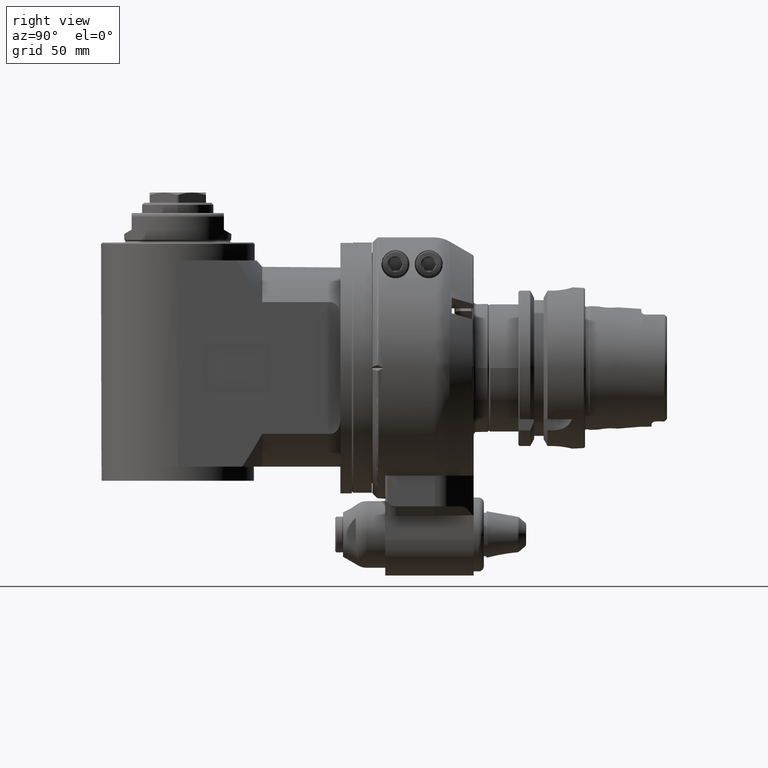
[diagram: clean part render]
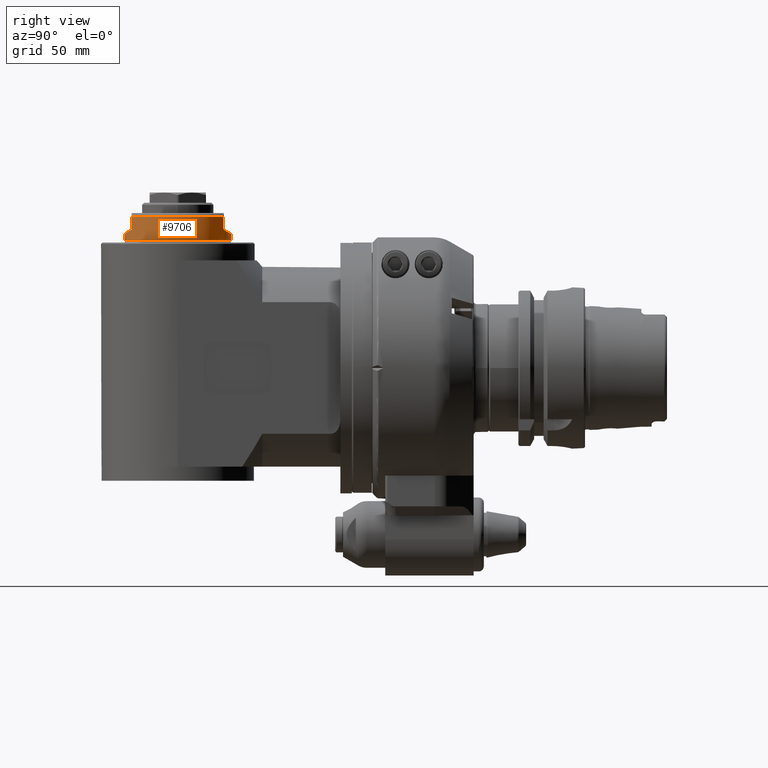
[diagram: same view with one face highlighted and labeled with its STEP entity id]
A machine part, right view. The second image highlights one B-rep face of the part: STEP entity #9706.
In plain terms, the highlighted cylindrical surface (bore or boss wall) has radius 21 mm, axis along (0, -0, 1).
Its self-contained STEP definition (entity closure, byte-faithful):
#34=ELLIPSE('',#10401,24.2487113059646,21.);
#35=ELLIPSE('',#10403,24.2487113059646,21.);
#836=FACE_OUTER_BOUND('',#1442,.T.);
#1442=EDGE_LOOP('',(#6719,#6720,#6721,#6722,#6723,#6724,#6725,#6726,#6727,
#6728,#6729,#6730));
#2122=LINE('',#14874,#2820);
#2123=LINE('',#14878,#2821);
#2124=LINE('',#14882,#2822);
#2125=LINE('',#14886,#2823);
#2126=LINE('',#14888,#2824);
#2820=VECTOR('',#11743,5.000000461621);
#2821=VECTOR('',#11746,5.000000461621);
#2822=VECTOR('',#11749,5.000000461621);
#2823=VECTOR('',#11752,5.000000461621);
#2824=VECTOR('',#11755,21.);
#3494=CIRCLE('',#10398,21.);
#3495=CIRCLE('',#10400,21.);
#3496=CIRCLE('',#10402,21.);
#3497=CIRCLE('',#10404,21.);
#4094=VERTEX_POINT('',#14866);
#4095=VERTEX_POINT('',#14870);
#4096=VERTEX_POINT('',#14871);
#4097=VERTEX_POINT('',#14873);
#4098=VERTEX_POINT('',#14875);
#4099=VERTEX_POINT('',#14877);
#4100=VERTEX_POINT('',#14879);
#4101=VERTEX_POINT('',#14881);
#4102=VERTEX_POINT('',#14883);
#4103=VERTEX_POINT('',#14885);
#5104=EDGE_CURVE('',#4094,#4094,#3494,.T.);
#5106=EDGE_CURVE('',#4095,#4096,#3495,.T.);
#5107=EDGE_CURVE('',#4095,#4097,#2122,.T.);
#5108=EDGE_CURVE('',#4098,#4097,#34,.T.);
#5109=EDGE_CURVE('',#4098,#4099,#2123,.T.);
#5110=EDGE_CURVE('',#4100,#4099,#3496,.T.);
#5111=EDGE_CURVE('',#4100,#4101,#2124,.T.);
#5112=EDGE_CURVE('',#4102,#4101,#35,.T.);
#5113=EDGE_CURVE('',#4102,#4103,#2125,.T.);
#5114=EDGE_CURVE('',#4096,#4103,#3497,.T.);
#5115=EDGE_CURVE('',#4096,#4094,#2126,.T.);
#6719=ORIENTED_EDGE('',*,*,#5106,.F.);
#6720=ORIENTED_EDGE('',*,*,#5107,.T.);
#6721=ORIENTED_EDGE('',*,*,#5108,.F.);
#6722=ORIENTED_EDGE('',*,*,#5109,.T.);
#6723=ORIENTED_EDGE('',*,*,#5110,.F.);
#6724=ORIENTED_EDGE('',*,*,#5111,.T.);
#6725=ORIENTED_EDGE('',*,*,#5112,.F.);
#6726=ORIENTED_EDGE('',*,*,#5113,.T.);
#6727=ORIENTED_EDGE('',*,*,#5114,.F.);
#6728=ORIENTED_EDGE('',*,*,#5115,.T.);
#6729=ORIENTED_EDGE('',*,*,#5104,.F.);
#6730=ORIENTED_EDGE('',*,*,#5115,.F.);
#9516=CYLINDRICAL_SURFACE('',#10399,21.);
#9706=ADVANCED_FACE('',(#836),#9516,.T.);
#10398=AXIS2_PLACEMENT_3D('',#14867,#11736,#11737);
#10399=AXIS2_PLACEMENT_3D('',#14869,#11739,#11740);
#10400=AXIS2_PLACEMENT_3D('',#14872,#11741,#11742);
#10401=AXIS2_PLACEMENT_3D('',#14876,#11744,#11745);
#10402=AXIS2_PLACEMENT_3D('',#14880,#11747,#11748);
#10403=AXIS2_PLACEMENT_3D('',#14884,#11750,#11751);
#10404=AXIS2_PLACEMENT_3D('',#14887,#11753,#11754);
#11736=DIRECTION('center_axis',(-1.,0.,0.));
#11737=DIRECTION('ref_axis',(0.,0.,1.));
#11739=DIRECTION('center_axis',(1.,0.,0.));
#11740=DIRECTION('ref_axis',(0.,0.,-1.));
#11741=DIRECTION('center_axis',(1.,0.,0.));
#11742=DIRECTION('ref_axis',(0.,0.857142857142874,0.515078753637684));
#11743=DIRECTION('',(-1.,0.,0.));
#11744=DIRECTION('center_axis',(0.866025403784429,0.500000000000017,0.));
#11745=DIRECTION('ref_axis',(-0.500000000000017,0.866025403784429,0.));
#11746=DIRECTION('',(1.,0.,0.));
#11747=DIRECTION('center_axis',(1.,0.,0.));
#11748=DIRECTION('ref_axis',(0.,-0.857142857142874,-0.515078753637684));
#11749=DIRECTION('',(-1.,0.,0.));
#11750=DIRECTION('center_axis',(0.866025403784429,-0.500000000000017,0.));
#11751=DIRECTION('ref_axis',(0.500000000000017,0.866025403784429,0.));
#11752=DIRECTION('',(1.,0.,0.));
#11753=DIRECTION('center_axis',(1.,0.,0.));
#11754=DIRECTION('ref_axis',(0.,0.857142857142874,0.515078753637684));
#11755=DIRECTION('',(-1.,0.,0.));
#14866=CARTESIAN_POINT('',(39.16004178792,-23.,21.));
#14867=CARTESIAN_POINT('Origin',(39.16004178792,-23.,2.878330544008E-14));
#14869=CARTESIAN_POINT('Origin',(46.66004178792,-23.,2.799354708706E-14));
#14870=CARTESIAN_POINT('',(48.16004178792,-4.999999999999,10.81665382639));
#14871=CARTESIAN_POINT('',(48.16004178792,-23.,21.));
#14872=CARTESIAN_POINT('Origin',(48.16004178792,-23.,2.783559541645E-14));
#14873=CARTESIAN_POINT('',(43.1600413263,-4.999999999999,10.81665382639));
#14874=CARTESIAN_POINT('',(48.16004178792,-4.999999999999,10.81665382639));
#14875=CARTESIAN_POINT('',(43.1600413263,-4.999999999999,-10.81665382639));
#14876=CARTESIAN_POINT('Origin',(53.5523461717143,-23.,2.799354708706E-14));
#14877=CARTESIAN_POINT('',(48.16004178792,-4.999999999999,-10.81665382639));
#14878=CARTESIAN_POINT('',(43.1600413263,-4.999999999999,-10.81665382639));
#14879=CARTESIAN_POINT('',(48.16004178792,-41.,-10.81665382639));
#14880=CARTESIAN_POINT('Origin',(48.16004178792,-23.,2.783559541645E-14));
#14881=CARTESIAN_POINT('',(43.1600413263,-41.,-10.81665382639));
#14882=CARTESIAN_POINT('',(48.16004178792,-41.,-10.81665382639));
#14883=CARTESIAN_POINT('',(43.1600413263,-41.,10.81665382639));
#14884=CARTESIAN_POINT('Origin',(53.552346171713,-23.,2.799354708706E-14));
#14885=CARTESIAN_POINT('',(48.16004178792,-41.,10.81665382639));
#14886=CARTESIAN_POINT('',(43.1600413263,-41.,10.81665382639));
#14887=CARTESIAN_POINT('Origin',(48.16004178792,-23.,2.783559541645E-14));
#14888=CARTESIAN_POINT('',(46.66004178792,-23.,21.));